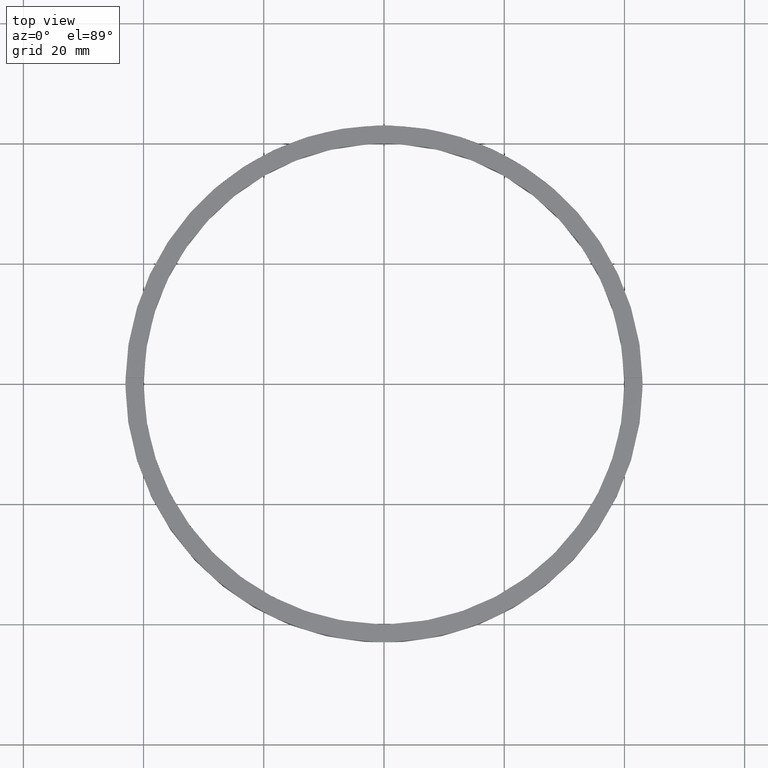
[diagram: clean part render]
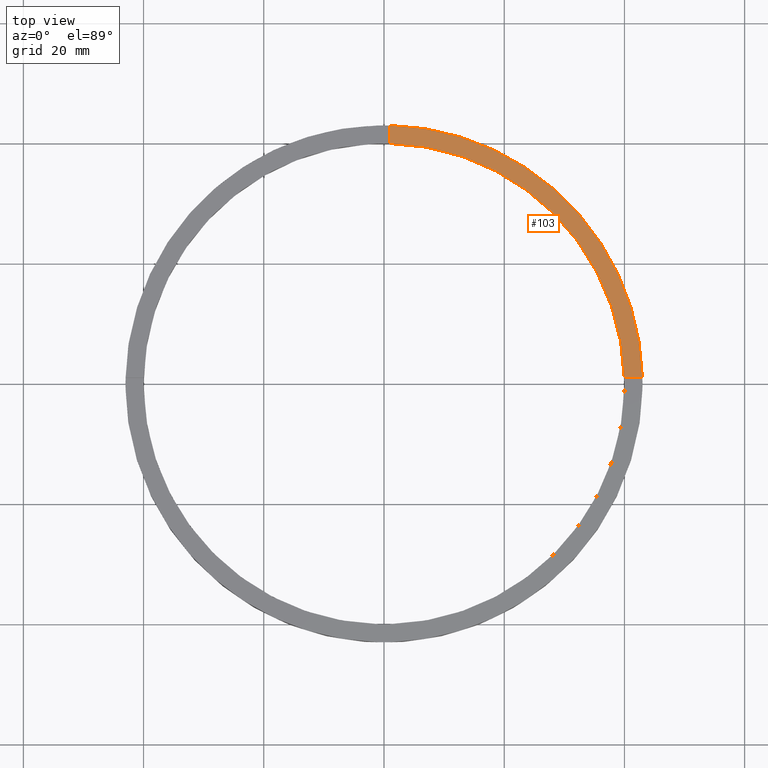
[diagram: same view with one face highlighted and labeled with its STEP entity id]
A machine part, top view. The second image highlights one B-rep face of the part: STEP entity #103.
In plain terms, the highlighted planar face has unit normal (0, 0, 1).
Its self-contained STEP definition (entity closure, byte-faithful):
#41 = VERTEX_POINT ( 'NONE', #431 ) ;
#61 = VECTOR ( 'NONE', #771, 1000.000000000000000 ) ;
#63 = CARTESIAN_POINT ( 'NONE',  ( 42.98837052040934026, 0.9999999999998434586, 4.000000000000000000 ) ) ;
#80 = FACE_OUTER_BOUND ( 'NONE', #765, .T. ) ;
#103 = ADVANCED_FACE ( 'NONE', ( #80 ), #363, .T. ) ;
#105 = VERTEX_POINT ( 'NONE', #611 ) ;
#180 = VECTOR ( 'NONE', #607, 1000.000000000000000 ) ;
#204 = CARTESIAN_POINT ( 'NONE',  ( 0.000000000000000000, 0.000000000000000000, 4.000000000000000000 ) ) ;
#227 = ORIENTED_EDGE ( 'NONE', *, *, #533, .F. ) ;
#228 = VERTEX_POINT ( 'NONE', #63 ) ;
#284 = CARTESIAN_POINT ( 'NONE',  ( 0.9999999999999740208, 32.99999999999997868, 4.000000000000000000 ) ) ;
#299 = DIRECTION ( 'NONE',  ( 0.000000000000000000, 0.000000000000000000, 1.000000000000000000 ) ) ;
#306 = AXIS2_PLACEMENT_3D ( 'NONE', #204, #299, #414 ) ;
#307 = CARTESIAN_POINT ( 'NONE',  ( 0.000000000000000000, 0.000000000000000000, 4.000000000000000000 ) ) ;
#310 = CIRCLE ( 'NONE', #306, 42.99999999999998579 ) ;
#313 = DIRECTION ( 'NONE',  ( 1.000000000000000000, 0.000000000000000000, -0.000000000000000000 ) ) ;
#320 = AXIS2_PLACEMENT_3D ( 'NONE', #307, #419, #467 ) ;
#351 = EDGE_CURVE ( 'NONE', #41, #517, #592, .T. ) ;
#355 = CARTESIAN_POINT ( 'NONE',  ( 0.9999999999999740208, 39.98749804626441318, 4.000000000000000000 ) ) ;
#363 = PLANE ( 'NONE',  #407 ) ;
#384 = EDGE_CURVE ( 'NONE', #228, #41, #594, .T. ) ;
#407 = AXIS2_PLACEMENT_3D ( 'NONE', #447, #664, #313 ) ;
#414 = DIRECTION ( 'NONE',  ( 1.000000000000000000, 0.000000000000000000, 0.000000000000000000 ) ) ;
#419 = DIRECTION ( 'NONE',  ( 0.000000000000000000, 0.000000000000000000, 1.000000000000000000 ) ) ;
#428 = EDGE_CURVE ( 'NONE', #228, #105, #310, .T. ) ;
#431 = CARTESIAN_POINT ( 'NONE',  ( 39.98749804626441318, 0.9999999999998432365, 4.000000000000000000 ) ) ;
#447 = CARTESIAN_POINT ( 'NONE',  ( 0.000000000000000000, 0.000000000000000000, 4.000000000000000000 ) ) ;
#467 = DIRECTION ( 'NONE',  ( 1.000000000000000000, 0.000000000000000000, 0.000000000000000000 ) ) ;
#517 = VERTEX_POINT ( 'NONE', #355 ) ;
#533 = EDGE_CURVE ( 'NONE', #517, #105, #714, .T. ) ;
#584 = ORIENTED_EDGE ( 'NONE', *, *, #351, .F. ) ;
#592 = CIRCLE ( 'NONE', #320, 40.00000000000000000 ) ;
#594 = LINE ( 'NONE', #687, #61 ) ;
#607 = DIRECTION ( 'NONE',  ( 0.000000000000000000, 1.000000000000000000, 0.000000000000000000 ) ) ;
#611 = CARTESIAN_POINT ( 'NONE',  ( 0.9999999999999740208, 42.98837052040934026, 4.000000000000000000 ) ) ;
#664 = DIRECTION ( 'NONE',  ( 0.000000000000000000, 0.000000000000000000, 1.000000000000000000 ) ) ;
#687 = CARTESIAN_POINT ( 'NONE',  ( 32.99999999999997158, 0.9999999999998427924, 4.000000000000000000 ) ) ;
#714 = LINE ( 'NONE', #284, #180 ) ;
#742 = ORIENTED_EDGE ( 'NONE', *, *, #428, .T. ) ;
#765 = EDGE_LOOP ( 'NONE', ( #227, #584, #766, #742 ) ) ;
#766 = ORIENTED_EDGE ( 'NONE', *, *, #384, .F. ) ;
#771 = DIRECTION ( 'NONE',  ( -1.000000000000000000, -6.505213034913025371E-17, -0.000000000000000000 ) ) ;